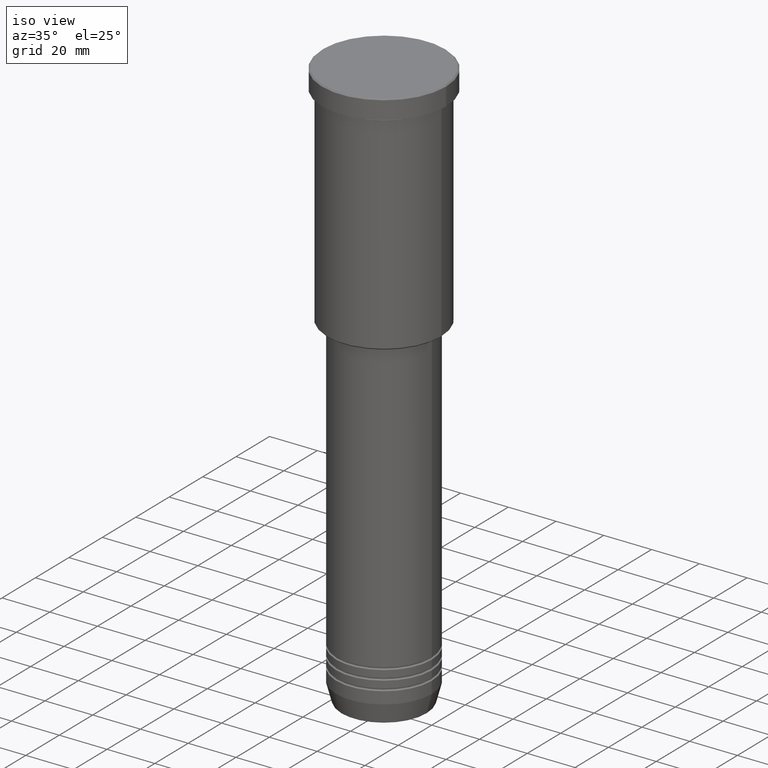
[diagram: clean part render]
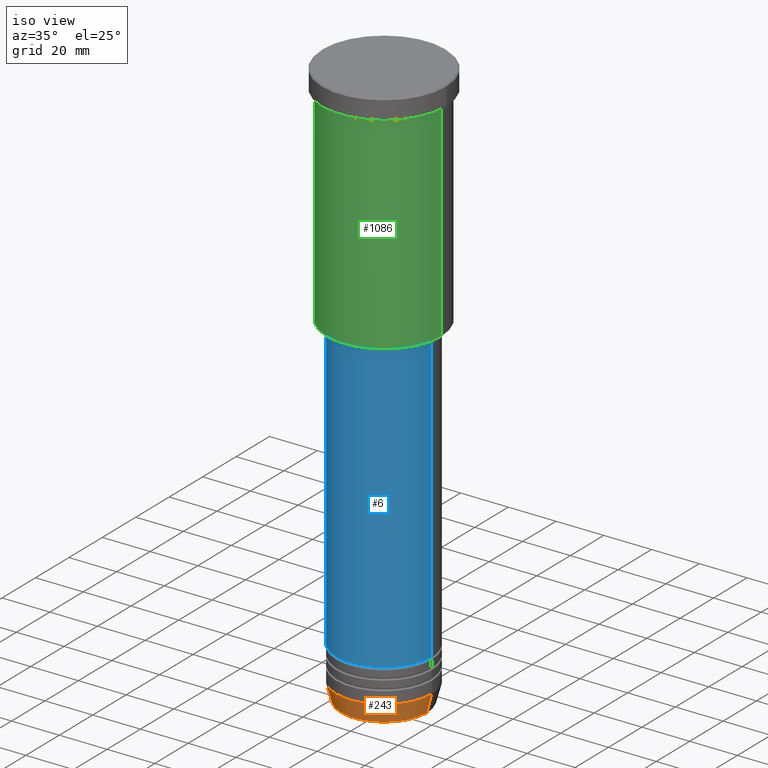
[diagram: same view with three faces highlighted in distinct colors, each labeled with its STEP entity id]
A machine part, iso view with three faces highlighted in distinct colors.
Their STEP definitions:

[orange] entity #243 — the highlighted conical surface has half-angle 15 deg.
#18 = EDGE_LOOP ( 'NONE', ( #800, #658, #486, #941 ) ) ;
#57 = CARTESIAN_POINT ( 'NONE',  ( -17.95570587970607690, 2.324116685748021371E-15, -239.6294095225512706 ) ) ;
#92 = CARTESIAN_POINT ( 'NONE',  ( -20.00000000000000355, 2.449293598294706907E-15, -232.0000000000000000 ) ) ;
#118 = DIRECTION ( 'NONE',  ( 1.000000000000000000, 0.000000000000000000, 0.000000000000000000 ) ) ;
#157 = LINE ( 'NONE', #329, #913 ) ;
#162 = DIRECTION ( 'NONE',  ( 1.000000000000000000, 0.000000000000000000, 0.000000000000000000 ) ) ;
#179 = DIRECTION ( 'NONE',  ( 1.000000000000000000, 0.000000000000000000, 0.000000000000000000 ) ) ;
#235 = CARTESIAN_POINT ( 'NONE',  ( 0.000000000000000000, 0.000000000000000000, -239.6294095225512706 ) ) ;
#243 = ADVANCED_FACE ( 'NONE', ( #323 ), #947, .T. ) ;
#267 = CARTESIAN_POINT ( 'NONE',  ( 17.95570587970607690, 0.000000000000000000, -239.6294095225512706 ) ) ;
#276 = EDGE_CURVE ( 'NONE', #414, #1130, #157, .T. ) ;
#290 = AXIS2_PLACEMENT_3D ( 'NONE', #235, #945, #118 ) ;
#323 = FACE_OUTER_BOUND ( 'NONE', #18, .T. ) ;
#329 = CARTESIAN_POINT ( 'NONE',  ( 20.00000000000000355, 0.000000000000000000, -232.0000000000000000 ) ) ;
#395 = CARTESIAN_POINT ( 'NONE',  ( 20.00000000000000355, 0.000000000000000000, -232.0000000000000000 ) ) ;
#414 = VERTEX_POINT ( 'NONE', #267 ) ;
#462 = DIRECTION ( 'NONE',  ( -0.2588190451025213501, 3.169619151431772337E-17, 0.9659258262890680902 ) ) ;
#486 = ORIENTED_EDGE ( 'NONE', *, *, #276, .T. ) ;
#510 = VECTOR ( 'NONE', #462, 1000.000000000000000 ) ;
#626 = VERTEX_POINT ( 'NONE', #57 ) ;
#636 = CARTESIAN_POINT ( 'NONE',  ( 0.000000000000000000, 0.000000000000000000, -232.0000000000000000 ) ) ;
#658 = ORIENTED_EDGE ( 'NONE', *, *, #809, .T. ) ;
#664 = AXIS2_PLACEMENT_3D ( 'NONE', #1141, #958, #162 ) ;
#800 = ORIENTED_EDGE ( 'NONE', *, *, #1044, .F. ) ;
#809 = EDGE_CURVE ( 'NONE', #626, #414, #1161, .T. ) ;
#833 = AXIS2_PLACEMENT_3D ( 'NONE', #636, #924, #179 ) ;
#913 = VECTOR ( 'NONE', #966, 1000.000000000000000 ) ;
#919 = LINE ( 'NONE', #92, #510 ) ;
#924 = DIRECTION ( 'NONE',  ( -0.000000000000000000, -0.000000000000000000, 1.000000000000000000 ) ) ;
#931 = EDGE_CURVE ( 'NONE', #1046, #1130, #1088, .T. ) ;
#941 = ORIENTED_EDGE ( 'NONE', *, *, #931, .F. ) ;
#945 = DIRECTION ( 'NONE',  ( -0.000000000000000000, -0.000000000000000000, 1.000000000000000000 ) ) ;
#947 = CONICAL_SURFACE ( 'NONE', #664, 20.00000000000000355, 0.2617993877991500740 ) ;
#958 = DIRECTION ( 'NONE',  ( -0.000000000000000000, -0.000000000000000000, 1.000000000000000000 ) ) ;
#966 = DIRECTION ( 'NONE',  ( 0.2588190451025213501, 0.000000000000000000, 0.9659258262890680902 ) ) ;
#1044 = EDGE_CURVE ( 'NONE', #626, #1046, #919, .T. ) ;
#1046 = VERTEX_POINT ( 'NONE', #1107 ) ;
#1088 = CIRCLE ( 'NONE', #833, 20.00000000000000355 ) ;
#1107 = CARTESIAN_POINT ( 'NONE',  ( -20.00000000000000355, 2.449293598294706907E-15, -232.0000000000000000 ) ) ;
#1130 = VERTEX_POINT ( 'NONE', #395 ) ;
#1141 = CARTESIAN_POINT ( 'NONE',  ( 0.000000000000000000, 0.000000000000000000, -232.0000000000000000 ) ) ;
#1161 = CIRCLE ( 'NONE', #290, 17.95570587970607690 ) ;

[blue] entity #6 — the highlighted cylindrical surface (partial cylindrical patch) has radius 20 mm, axis along (-0, -0, 1).
#6 = ADVANCED_FACE ( 'NONE', ( #1152 ), #528, .T. ) ;
#24 = DIRECTION ( 'NONE',  ( 1.000000000000000000, 0.000000000000000000, 0.000000000000000000 ) ) ;
#64 = CARTESIAN_POINT ( 'NONE',  ( 20.00000000000000355, 0.000000000000000000, 0.000000000000000000 ) ) ;
#77 = VERTEX_POINT ( 'NONE', #146 ) ;
#79 = CARTESIAN_POINT ( 'NONE',  ( 20.00000000000000355, 0.000000000000000000, -97.00000000000002842 ) ) ;
#104 = VECTOR ( 'NONE', #1135, 1000.000000000000000 ) ;
#107 = EDGE_LOOP ( 'NONE', ( #566, #113, #312, #662 ) ) ;
#113 = ORIENTED_EDGE ( 'NONE', *, *, #638, .T. ) ;
#132 = EDGE_CURVE ( 'NONE', #77, #388, #190, .T. ) ;
#146 = CARTESIAN_POINT ( 'NONE',  ( -20.00000000000000355, 2.449293598294706907E-15, -97.00000000000002842 ) ) ;
#175 = CARTESIAN_POINT ( 'NONE',  ( -20.00000000000000355, 2.449293598294706907E-15, 0.000000000000000000 ) ) ;
#190 = CIRCLE ( 'NONE', #209, 20.00000000000000355 ) ;
#209 = AXIS2_PLACEMENT_3D ( 'NONE', #841, #733, #24 ) ;
#244 = CARTESIAN_POINT ( 'NONE',  ( 0.000000000000000000, 0.000000000000000000, 0.000000000000000000 ) ) ;
#312 = ORIENTED_EDGE ( 'NONE', *, *, #342, .T. ) ;
#342 = EDGE_CURVE ( 'NONE', #916, #388, #887, .T. ) ;
#383 = CIRCLE ( 'NONE', #423, 20.00000000000000355 ) ;
#388 = VERTEX_POINT ( 'NONE', #79 ) ;
#423 = AXIS2_PLACEMENT_3D ( 'NONE', #996, #609, #917 ) ;
#453 = DIRECTION ( 'NONE',  ( -0.000000000000000000, -0.000000000000000000, 1.000000000000000000 ) ) ;
#528 = CYLINDRICAL_SURFACE ( 'NONE', #1014, 20.00000000000000355 ) ;
#566 = ORIENTED_EDGE ( 'NONE', *, *, #779, .F. ) ;
#609 = DIRECTION ( 'NONE',  ( -0.000000000000000000, -0.000000000000000000, 1.000000000000000000 ) ) ;
#615 = DIRECTION ( 'NONE',  ( 1.000000000000000000, 0.000000000000000000, 0.000000000000000000 ) ) ;
#619 = LINE ( 'NONE', #175, #1001 ) ;
#622 = CARTESIAN_POINT ( 'NONE',  ( -20.00000000000000355, 2.449293598294706907E-15, -218.0000000000000000 ) ) ;
#638 = EDGE_CURVE ( 'NONE', #970, #916, #383, .T. ) ;
#639 = CARTESIAN_POINT ( 'NONE',  ( 20.00000000000000355, 0.000000000000000000, -218.0000000000000000 ) ) ;
#662 = ORIENTED_EDGE ( 'NONE', *, *, #132, .F. ) ;
#733 = DIRECTION ( 'NONE',  ( -0.000000000000000000, -0.000000000000000000, 1.000000000000000000 ) ) ;
#779 = EDGE_CURVE ( 'NONE', #970, #77, #619, .T. ) ;
#798 = DIRECTION ( 'NONE',  ( -0.000000000000000000, -0.000000000000000000, 1.000000000000000000 ) ) ;
#841 = CARTESIAN_POINT ( 'NONE',  ( 0.000000000000000000, 0.000000000000000000, -97.00000000000002842 ) ) ;
#887 = LINE ( 'NONE', #64, #104 ) ;
#916 = VERTEX_POINT ( 'NONE', #639 ) ;
#917 = DIRECTION ( 'NONE',  ( 1.000000000000000000, 0.000000000000000000, 0.000000000000000000 ) ) ;
#970 = VERTEX_POINT ( 'NONE', #622 ) ;
#996 = CARTESIAN_POINT ( 'NONE',  ( 0.000000000000000000, 0.000000000000000000, -218.0000000000000000 ) ) ;
#1001 = VECTOR ( 'NONE', #453, 1000.000000000000000 ) ;
#1014 = AXIS2_PLACEMENT_3D ( 'NONE', #244, #798, #615 ) ;
#1135 = DIRECTION ( 'NONE',  ( -0.000000000000000000, -0.000000000000000000, 1.000000000000000000 ) ) ;
#1152 = FACE_OUTER_BOUND ( 'NONE', #107, .T. ) ;

[green] entity #1086 — the highlighted cylindrical surface (partial cylindrical patch) has radius 24 mm, axis along (-0, -0, 1).
#54 = FACE_OUTER_BOUND ( 'NONE', #862, .T. ) ;
#87 = VERTEX_POINT ( 'NONE', #506 ) ;
#90 = EDGE_CURVE ( 'NONE', #668, #87, #784, .T. ) ;
#121 = CARTESIAN_POINT ( 'NONE',  ( 0.000000000000000000, 0.000000000000000000, -8.999999999999994671 ) ) ;
#177 = DIRECTION ( 'NONE',  ( -0.000000000000000000, -0.000000000000000000, 1.000000000000000000 ) ) ;
#249 = DIRECTION ( 'NONE',  ( -0.000000000000000000, -0.000000000000000000, 1.000000000000000000 ) ) ;
#260 = EDGE_CURVE ( 'NONE', #1013, #445, #973, .T. ) ;
#282 = DIRECTION ( 'NONE',  ( -0.000000000000000000, -0.000000000000000000, 1.000000000000000000 ) ) ;
#291 = AXIS2_PLACEMENT_3D ( 'NONE', #1058, #249, #513 ) ;
#337 = CYLINDRICAL_SURFACE ( 'NONE', #291, 24.00000000000000000 ) ;
#340 = DIRECTION ( 'NONE',  ( -0.000000000000000000, -0.000000000000000000, 1.000000000000000000 ) ) ;
#343 = AXIS2_PLACEMENT_3D ( 'NONE', #354, #282, #1077 ) ;
#354 = CARTESIAN_POINT ( 'NONE',  ( 0.000000000000000000, 0.000000000000000000, -95.50000000000007105 ) ) ;
#433 = EDGE_CURVE ( 'NONE', #668, #1013, #813, .T. ) ;
#445 = VERTEX_POINT ( 'NONE', #804 ) ;
#506 = CARTESIAN_POINT ( 'NONE',  ( -24.00000000000000000, 2.939152317953647894E-15, -8.999999999999994671 ) ) ;
#513 = DIRECTION ( 'NONE',  ( 1.000000000000000000, 0.000000000000000000, 0.000000000000000000 ) ) ;
#523 = CARTESIAN_POINT ( 'NONE',  ( 24.00000000000000000, 0.000000000000000000, 0.000000000000000000 ) ) ;
#569 = ORIENTED_EDGE ( 'NONE', *, *, #90, .F. ) ;
#618 = AXIS2_PLACEMENT_3D ( 'NONE', #121, #177, #1067 ) ;
#661 = CARTESIAN_POINT ( 'NONE',  ( -24.00000000000000000, 2.939152317953647894E-15, -95.50000000000007105 ) ) ;
#668 = VERTEX_POINT ( 'NONE', #661 ) ;
#699 = CARTESIAN_POINT ( 'NONE',  ( 24.00000000000000000, 0.000000000000000000, -95.50000000000007105 ) ) ;
#761 = ORIENTED_EDGE ( 'NONE', *, *, #1172, .F. ) ;
#784 = LINE ( 'NONE', #877, #811 ) ;
#804 = CARTESIAN_POINT ( 'NONE',  ( 24.00000000000000000, 0.000000000000000000, -8.999999999999994671 ) ) ;
#811 = VECTOR ( 'NONE', #1163, 1000.000000000000000 ) ;
#813 = CIRCLE ( 'NONE', #343, 24.00000000000000000 ) ;
#827 = ORIENTED_EDGE ( 'NONE', *, *, #433, .T. ) ;
#862 = EDGE_LOOP ( 'NONE', ( #569, #827, #867, #761 ) ) ;
#867 = ORIENTED_EDGE ( 'NONE', *, *, #260, .T. ) ;
#877 = CARTESIAN_POINT ( 'NONE',  ( -24.00000000000000000, 2.939152317953647894E-15, 0.000000000000000000 ) ) ;
#973 = LINE ( 'NONE', #523, #1181 ) ;
#1013 = VERTEX_POINT ( 'NONE', #699 ) ;
#1058 = CARTESIAN_POINT ( 'NONE',  ( 0.000000000000000000, 0.000000000000000000, 0.000000000000000000 ) ) ;
#1067 = DIRECTION ( 'NONE',  ( 1.000000000000000000, 0.000000000000000000, 0.000000000000000000 ) ) ;
#1077 = DIRECTION ( 'NONE',  ( -1.000000000000000000, 0.000000000000000000, 0.000000000000000000 ) ) ;
#1086 = ADVANCED_FACE ( 'NONE', ( #54 ), #337, .T. ) ;
#1140 = CIRCLE ( 'NONE', #618, 24.00000000000000000 ) ;
#1163 = DIRECTION ( 'NONE',  ( -0.000000000000000000, -0.000000000000000000, 1.000000000000000000 ) ) ;
#1172 = EDGE_CURVE ( 'NONE', #87, #445, #1140, .T. ) ;
#1181 = VECTOR ( 'NONE', #340, 1000.000000000000000 ) ;